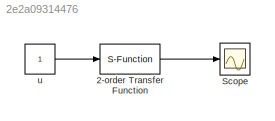
MODEL slx_2e2a09314476
KIND model
CONFIG AbsTol = auto
CONFIG EnableMultiTasking = off
CONFIG FixedStep = auto
CONFIG MaxStep = auto
CONFIG MinStep = auto
CONFIG RelTol = 1e-3
CONFIG SampleTimeConstraint = Unconstrained
CONFIG SolverName = VariableStepAuto
CONFIG StartTime = 0.0
CONFIG StopTime = 10.0
WORKSPACE source: mxarray member
WORKSPACE wn = 1
WORKSPACE zeta = 1
BLOCK [S-Function] 2-order Transfer Function
  EnableBusSupport = off
  FunctionName = order2_TransFcn
  Parameters = zeta,wn
  Ports = [1, 1]
  SFcnIsStateOwnerBlock = off
  SFunctionDeploymentMode = off
BLOCK [Scope] Scope
  Floating = off
  NumInputPorts = 1
  Ports = [1]
  ScopeSpecificationString = Simulink.scopes.TimeScopeBlockCfg('CurrentConfiguration', extmgr.ConfigurationSet(extmgr.Configuration('Core','General UI',true),extmgr.Configuration('Core','Source UI',true),extmgr.Configuration('Sources','WiredSimulink',true),extmgr.Configuration('Visuals','Time Domain',true,'SerializedDisplays',{struct('MinYLimReal','-0.12494','MaxYLimReal','1.12444','YLabelReal','','MinYLimMag','0.00000','MaxY...<+1345ch>
BLOCK [Constant] u
LINE 2-order Transfer Function:1 -> Scope:1
LINE u:1 -> 2-order Transfer Function:1
